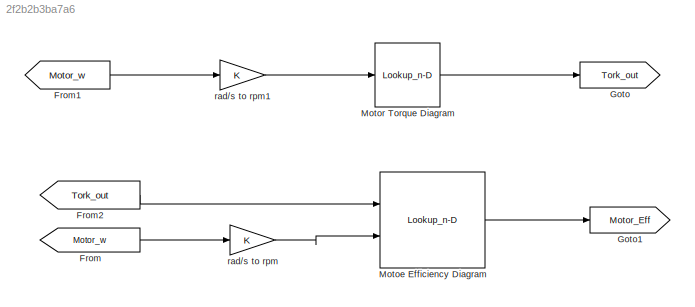
MODEL slx_2f2b2b3ba7a6
KIND model
CONFIG AbsTol = auto
CONFIG EnableMultiTasking = off
CONFIG FixedStep = auto
CONFIG MaxStep = auto
CONFIG MinStep = auto
CONFIG RelTol = 1e-3
CONFIG SampleTimeConstraint = Unconstrained
CONFIG Solver = VariableStepAuto
CONFIG SolverName = VariableStepAuto
CONFIG StartTime = 0.0
CONFIG StopTime = 10.0
BLOCK [From] From
  GotoTag = Motor_w
BLOCK [From] From1
  GotoTag = Motor_w
BLOCK [From] From2
  GotoTag = Tork_out
BLOCK [Goto] Goto
  GotoTag = Tork_out
BLOCK [Goto] Goto1
  GotoTag = Motor_Eff
BLOCK [Lookup_n-D] Motoe Efficiency Diagram
  BreakpointsForDimension1 = [1:3]
  BreakpointsForDimension2 = [1:3]
  InternalRulePriority = Speed
  Ports = [2, 1]
  RndMeth = Simplest
BLOCK [Lookup_n-D] Motor Torque Diagram
  BreakpointsForDimension1 = [-5:5]
  BreakpointsForDimension1FirstPoint = 10
  BreakpointsForDimension1Spacing = 12
  BreakpointsForDimension2FirstPoint = 10
  BreakpointsForDimension2Spacing = 12
  DiagnosticForOutOfRangeInput = Error
  IndexSearchMethod = Evenly spaced points
  InternalRulePriority = Speed
  InterpMethod = Flat
  LookupTableObject = ''
  NumberOfTableDimensions = 1
  Ports = [1, 1]
  RndMeth = Simplest
  Table = tanh([-5:5])
BLOCK [Gain] rad//s to rpm
  Gain = K
BLOCK [Gain] rad//s to rpm1
  Gain = K
LINE From1:1 -> rad//s to rpm1:1
LINE From2:1 -> Motoe Efficiency Diagram:1
LINE From:1 -> rad//s to rpm:1
LINE Motoe Efficiency Diagram:1 -> Goto1:1
LINE Motor Torque Diagram:1 -> Goto:1
LINE rad//s to rpm1:1 -> Motor Torque Diagram:1
LINE rad//s to rpm:1 -> Motoe Efficiency Diagram:2
